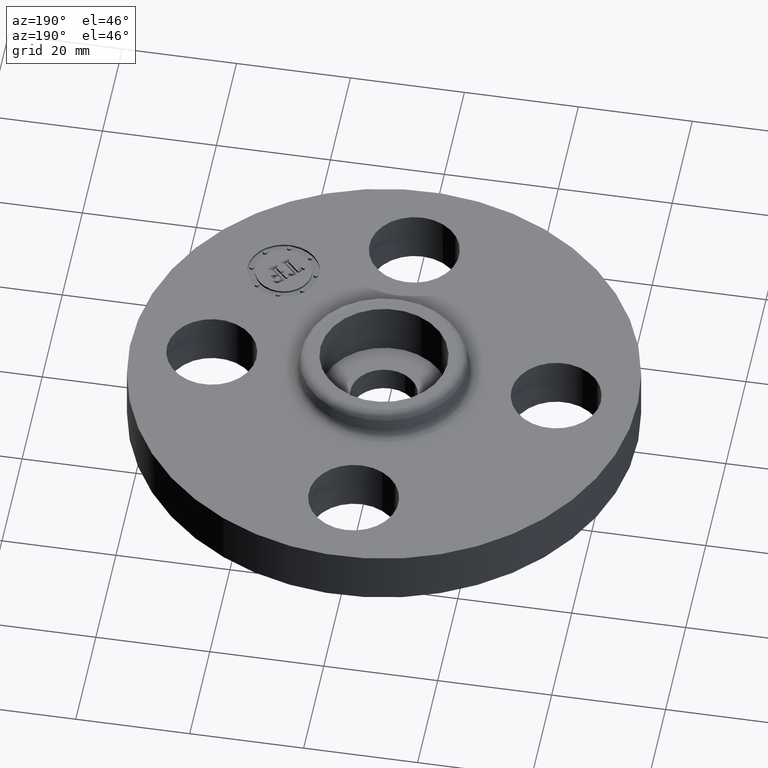
[diagram: clean part render]
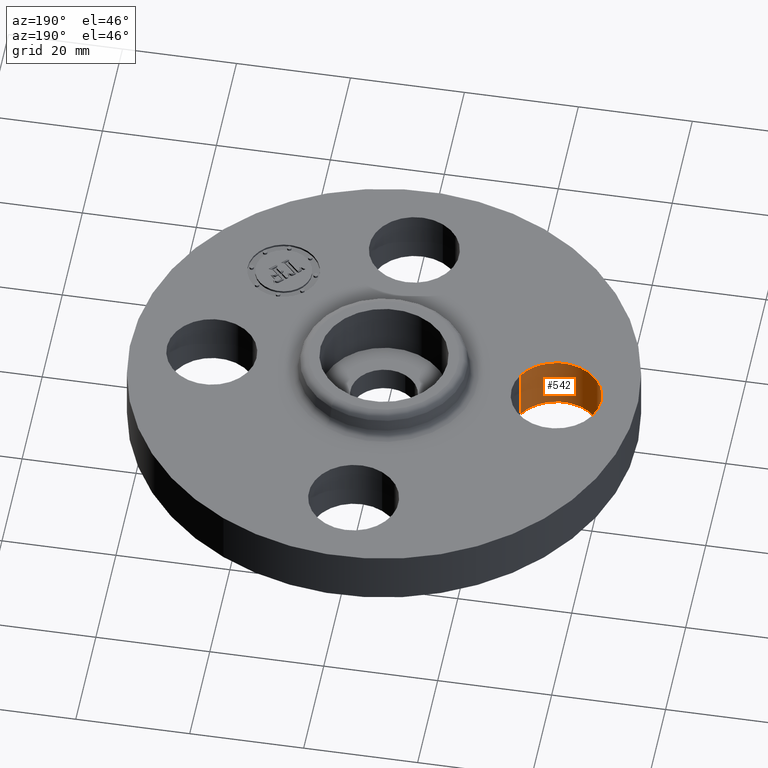
[diagram: same view with one face highlighted and labeled with its STEP entity id]
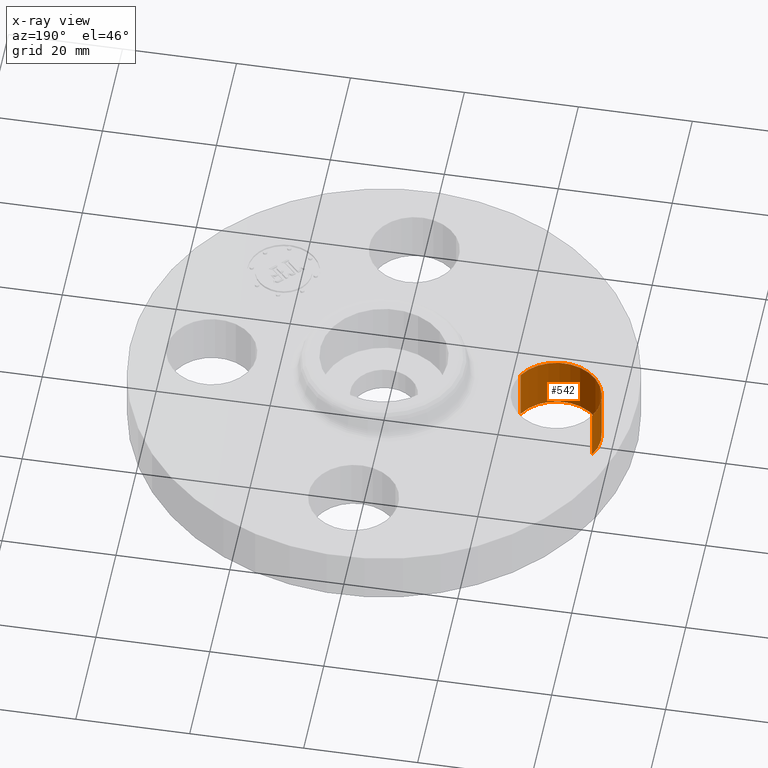
[diagram: x-ray of the same camera — body ghosted, the highlighted face saturated]
A machine part, auxiliary view. The second image highlights one B-rep face of the part: STEP entity #542.
The next image is the same camera in x-ray: the body ghosted, the highlighted face saturated — about 0% of this face is hidden behind the body in this view.
In plain terms, the highlighted cylindrical surface (partial cylindrical patch) has radius 7.874 mm, axis along (-0, 0, -1).
Its self-contained STEP definition (entity closure, byte-faithful):
#208=AXIS2_PLACEMENT_3D('Circle Axis2P3D',#206,#207,$) ;
#503=AXIS2_PLACEMENT_3D('Cylinder Axis2P3D',#500,#501,#502) ;
#533=AXIS2_PLACEMENT_3D('Circle Axis2P3D',#531,#532,$) ;
#206=CARTESIAN_POINT('Axis2P3D Location',(-1.19,-1.04902962957E-016,0.)) ;
#210=CARTESIAN_POINT('Vertex',(-0.917949405818,-0.148621916968,0.)) ;
#212=CARTESIAN_POINT('Vertex',(-1.46205059419,0.148621916968,0.)) ;
#500=CARTESIAN_POINT('Axis2P3D Location',(-1.19,-1.45732969099E-016,0.376062992128)) ;
#505=CARTESIAN_POINT('Line Origine',(-1.46205059419,0.148621916968,0.190000000001)) ;
#509=CARTESIAN_POINT('Vertex',(-1.46205059419,0.148621916968,0.380000000002)) ;
#512=CARTESIAN_POINT('Line Origine',(-0.917949405818,-0.148621916968,0.190000000001)) ;
#516=CARTESIAN_POINT('Vertex',(-0.917949405818,-0.148621916968,0.380000000002)) ;
#531=CARTESIAN_POINT('Axis2P3D Location',(-1.19,-1.45732969099E-016,0.380000000002)) ;
#207=DIRECTION('Axis2P3D Direction',(0.,0.,-0.0393700787402)) ;
#501=DIRECTION('Axis2P3D Direction',(-0.,0.,-0.0393700787402)) ;
#502=DIRECTION('Axis2P3D XDirection',(0.0345504945626,-0.0188750212049,-0.)) ;
#506=DIRECTION('Vector Direction',(0.,0.,-0.0393700787402)) ;
#513=DIRECTION('Vector Direction',(0.,0.,-0.0393700787402)) ;
#532=DIRECTION('Axis2P3D Direction',(-0.,0.,-0.0393700787402)) ;
#507=VECTOR('Line Direction',#506,0.0393700787402) ;
#514=VECTOR('Line Direction',#513,0.0393700787402) ;
#537=ORIENTED_EDGE('',*,*,#518,.F.) ;
#538=ORIENTED_EDGE('',*,*,#214,.T.) ;
#539=ORIENTED_EDGE('',*,*,#511,.T.) ;
#540=ORIENTED_EDGE('',*,*,#535,.F.) ;
#542=ADVANCED_FACE('PartBody',(#541),#504,.F.) ;
#209=CIRCLE('generated circle',#208,0.310000000001) ;
#534=CIRCLE('generated circle',#533,0.310000000001) ;
#504=CYLINDRICAL_SURFACE('generated cylinder',#503,0.310000000001) ;
#214=EDGE_CURVE('',#211,#213,#209,.T.) ;
#511=EDGE_CURVE('',#213,#510,#508,.F.) ;
#518=EDGE_CURVE('',#211,#517,#515,.F.) ;
#535=EDGE_CURVE('',#517,#510,#534,.T.) ;
#536=EDGE_LOOP('',(#537,#538,#539,#540)) ;
#541=FACE_OUTER_BOUND('',#536,.T.) ;
#508=LINE('Line',#505,#507) ;
#515=LINE('Line',#512,#514) ;
#211=VERTEX_POINT('',#210) ;
#213=VERTEX_POINT('',#212) ;
#510=VERTEX_POINT('',#509) ;
#517=VERTEX_POINT('',#516) ;